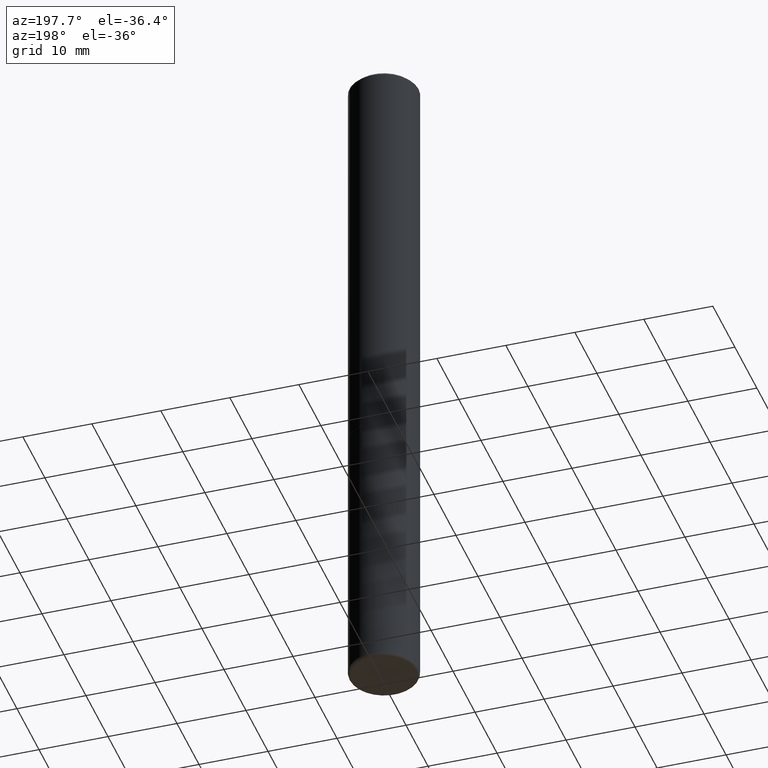
[diagram: clean part render]
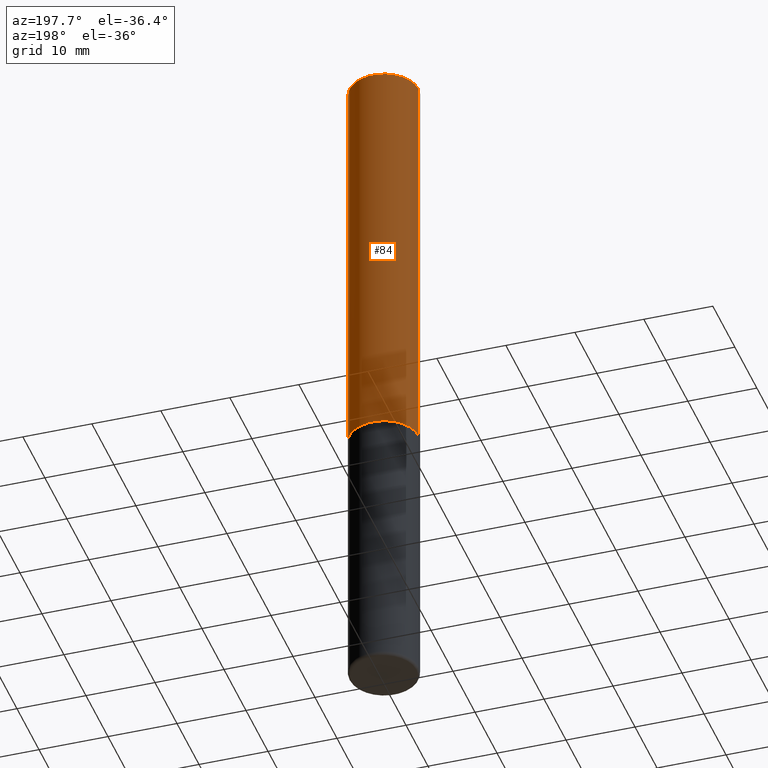
[diagram: same view with one face highlighted and labeled with its STEP entity id]
A machine part, auxiliary view. The second image highlights one B-rep face of the part: STEP entity #84.
In plain terms, the highlighted cylindrical surface (edge-blend (fillet) strip) has radius 5 mm, axis along (-0, 0, 1).
Its self-contained STEP definition (entity closure, byte-faithful):
#2 = ORIENTED_EDGE ( 'NONE', *, *, #209, .T. ) ;
#4 = ORIENTED_EDGE ( 'NONE', *, *, #355, .F. ) ;
#24 = FACE_OUTER_BOUND ( 'NONE', #154, .T. ) ;
#39 = DIRECTION ( 'NONE',  ( 1.000000000000000000, -6.982962677686266711E-15, 0.000000000000000000 ) ) ;
#41 = DIRECTION ( 'NONE',  ( -2.445468806185136597E-29, 3.491481338843145583E-15, 1.000000000000000000 ) ) ;
#45 = VERTEX_POINT ( 'NONE', #228 ) ;
#65 = CARTESIAN_POINT ( 'NONE',  ( 0.1968500000000000527, -1.420318657638189516E-15, -0.02000000000000004205 ) ) ;
#84 = ADVANCED_FACE ( 'NONE', ( #24 ), #411, .T. ) ;
#88 = DIRECTION ( 'NONE',  ( 1.000000000000000000, -6.982962677686266711E-15, 4.876176775795935793E-29 ) ) ;
#100 = LINE ( 'NONE', #327, #155 ) ;
#108 = DIRECTION ( 'NONE',  ( -2.445468806185136877E-29, 3.491481338843145188E-15, 1.000000000000000000 ) ) ;
#115 = CARTESIAN_POINT ( 'NONE',  ( 0.000000000000000000, 0.000000000000000000, 0.000000000000000000 ) ) ;
#140 = AXIS2_PLACEMENT_3D ( 'NONE', #342, #308, #262 ) ;
#154 = EDGE_LOOP ( 'NONE', ( #2, #347, #406, #4 ) ) ;
#155 = VECTOR ( 'NONE', #358, 39.37007874015748143 ) ;
#169 = EDGE_CURVE ( 'NONE', #350, #252, #237, .T. ) ;
#179 = VECTOR ( 'NONE', #108, 39.37007874015748143 ) ;
#190 = VERTEX_POINT ( 'NONE', #338 ) ;
#209 = EDGE_CURVE ( 'NONE', #190, #45, #348, .T. ) ;
#228 = CARTESIAN_POINT ( 'NONE',  ( -0.1968500000000002748, -2.758254306682887043E-15, -2.361199999999999743 ) ) ;
#236 = AXIS2_PLACEMENT_3D ( 'NONE', #115, #251, #88 ) ;
#237 = CIRCLE ( 'NONE', #260, 0.1968500000000000527 ) ;
#245 = EDGE_CURVE ( 'NONE', #45, #252, #336, .T. ) ;
#251 = DIRECTION ( 'NONE',  ( -2.445468806185136597E-29, 3.491481338843145583E-15, 1.000000000000000000 ) ) ;
#252 = VERTEX_POINT ( 'NONE', #403 ) ;
#260 = AXIS2_PLACEMENT_3D ( 'NONE', #296, #41, #39 ) ;
#262 = DIRECTION ( 'NONE',  ( 1.000000000000000000, -6.982962677686269077E-15, 0.000000000000000000 ) ) ;
#296 = CARTESIAN_POINT ( 'NONE',  ( 4.890937612370283668E-31, -6.982962677686305168E-17, -0.02000000000000004205 ) ) ;
#308 = DIRECTION ( 'NONE',  ( -2.445468806185136597E-29, 3.491481338843145583E-15, 1.000000000000000000 ) ) ;
#327 = CARTESIAN_POINT ( 'NONE',  ( 0.1968500000000001915, -1.374596203102542989E-15, 9.598753983154309266E-30 ) ) ;
#336 = LINE ( 'NONE', #368, #179 ) ;
#338 = CARTESIAN_POINT ( 'NONE',  ( 0.1968500000000002748, -9.618681940378978228E-15, -2.361199999999999743 ) ) ;
#342 = CARTESIAN_POINT ( 'NONE',  ( 5.774240945164344150E-29, -8.244085737276433464E-15, -2.361199999999999743 ) ) ;
#347 = ORIENTED_EDGE ( 'NONE', *, *, #245, .T. ) ;
#348 = CIRCLE ( 'NONE', #140, 0.1968500000000002748 ) ;
#350 = VERTEX_POINT ( 'NONE', #65 ) ;
#355 = EDGE_CURVE ( 'NONE', #190, #350, #100, .T. ) ;
#358 = DIRECTION ( 'NONE',  ( -2.445468806185136877E-29, 3.491481338843145188E-15, 1.000000000000000000 ) ) ;
#368 = CARTESIAN_POINT ( 'NONE',  ( -0.1968500000000001915, 1.398703375343758577E-15, -9.682923725166790684E-30 ) ) ;
#403 = CARTESIAN_POINT ( 'NONE',  ( -0.1968500000000000527, 1.304766576325678902E-15, -0.02000000000000004205 ) ) ;
#406 = ORIENTED_EDGE ( 'NONE', *, *, #169, .F. ) ;
#411 = CYLINDRICAL_SURFACE ( 'NONE', #236, 0.1968500000000001915 ) ;